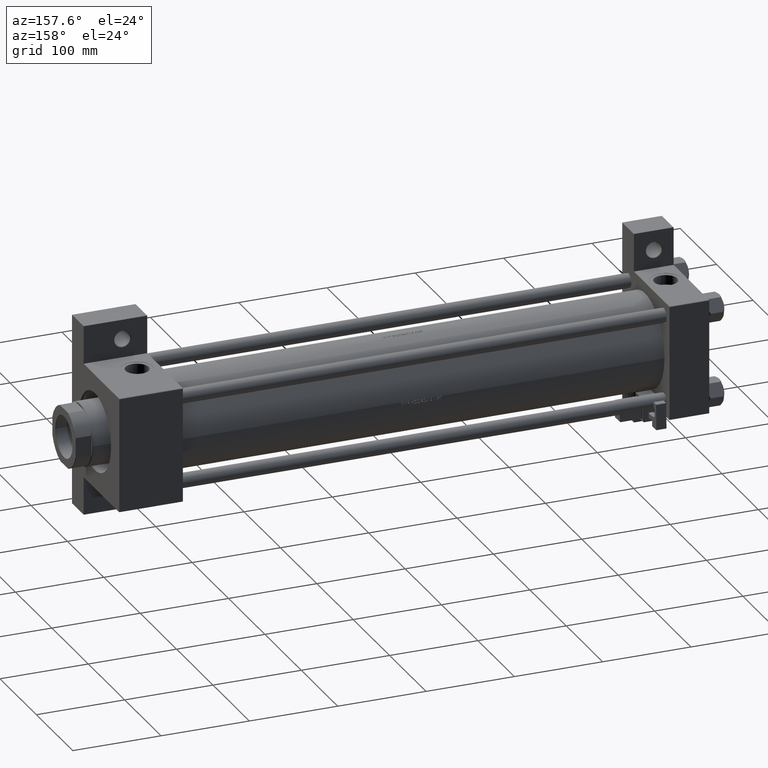
[diagram: clean part render]
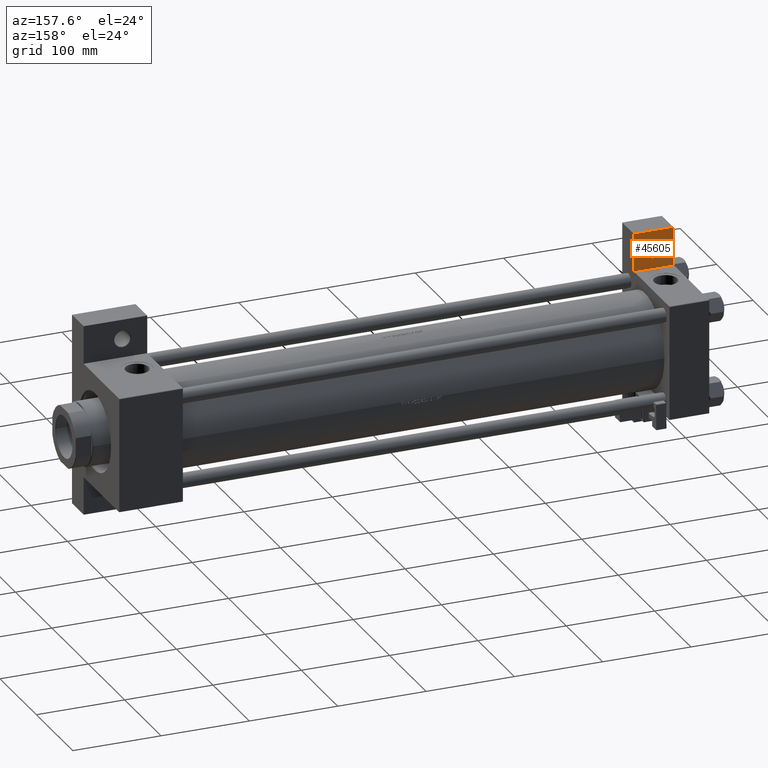
[diagram: same view with one face highlighted and labeled with its STEP entity id]
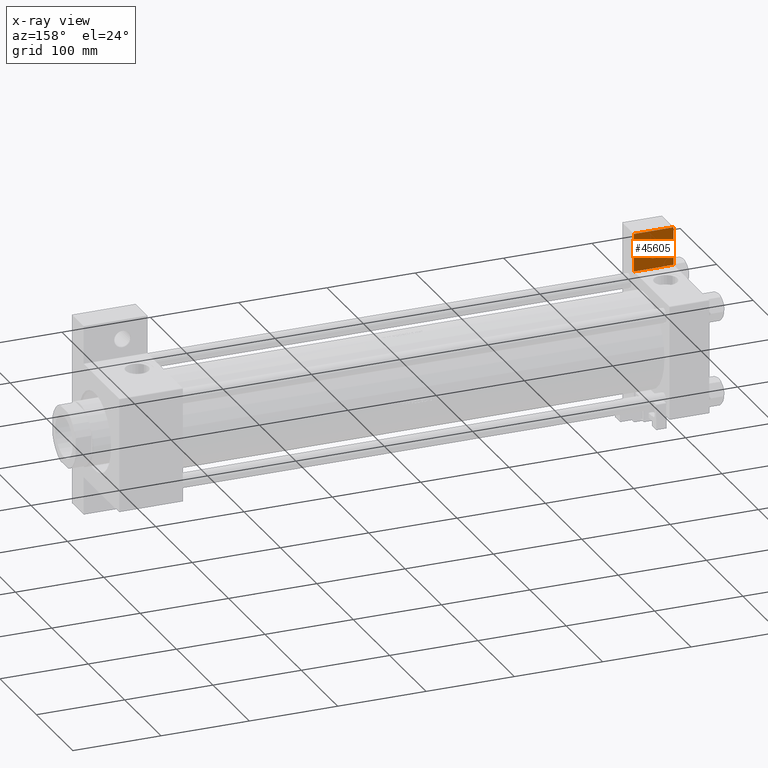
[diagram: x-ray of the same camera — body ghosted, the highlighted face saturated]
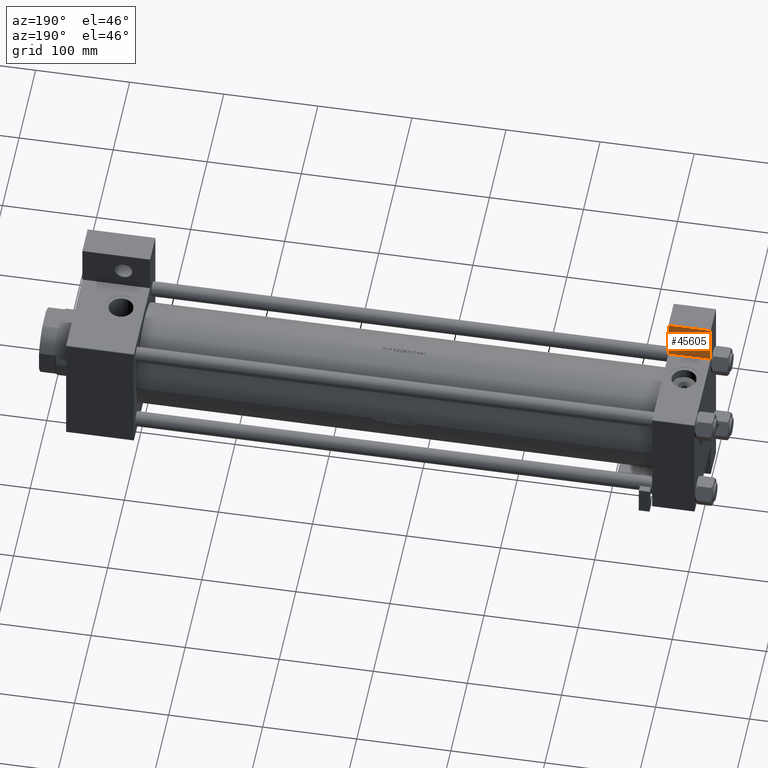
[diagram: same view with one face highlighted and labeled with its STEP entity id]
A machine part, auxiliary view. The second image highlights one B-rep face of the part: STEP entity #45605.
The next image is the same camera in x-ray: the body ghosted, the highlighted face saturated — about 0% of this face is hidden behind the body in this view.
A second angle (auxiliary view) of the same face is appended — the face is thin or edge-on in the first view.
In plain terms, the highlighted planar face has unit normal (0, -1, 0).
Its self-contained STEP definition (entity closure, byte-faithful):
#290 = DIRECTION ( 'NONE',  ( -1.000000000000000000, 0.000000000000000000, 0.000000000000000000 ) ) ;
#434 = LINE ( 'NONE', #24741, #41705 ) ;
#874 = CARTESIAN_POINT ( 'NONE',  ( 31.49949999999999406, -86.00000000000004263, -33.00000000000000000 ) ) ;
#2332 = VECTOR ( 'NONE', #10179, 1000.000000000000000 ) ;
#3481 = CARTESIAN_POINT ( 'NONE',  ( 22.00000000000000000, -86.00000000000004263, -33.00000000000000000 ) ) ;
#3577 = FACE_OUTER_BOUND ( 'NONE', #35748, .T. ) ;
#3712 = EDGE_CURVE ( 'NONE', #41828, #46774, #434, .T. ) ;
#5263 = LINE ( 'NONE', #49181, #44895 ) ;
#5445 = EDGE_CURVE ( 'NONE', #41512, #8492, #48333, .T. ) ;
#5585 = CARTESIAN_POINT ( 'NONE',  ( 45.00000000000000000, -108.0000000000000000, -33.00000000000000000 ) ) ;
#6552 = FACE_BOUND ( 'NONE', #20998, .T. ) ;
#7501 = DIRECTION ( 'NONE',  ( 0.000000000000000000, 0.000000000000000000, -1.000000000000000000 ) ) ;
#8142 = AXIS2_PLACEMENT_3D ( 'NONE', #15704, #7501, #51190 ) ;
#8145 = AXIS2_PLACEMENT_3D ( 'NONE', #3481, #40721, #290 ) ;
#8492 = VERTEX_POINT ( 'NONE', #33521 ) ;
#9638 = EDGE_CURVE ( 'NONE', #28936, #49533, #30968, .T. ) ;
#9798 = AXIS2_PLACEMENT_3D ( 'NONE', #18717, #15460, #15979 ) ;
#10179 = DIRECTION ( 'NONE',  ( 1.000000000000000000, 0.000000000000000000, 0.000000000000000000 ) ) ;
#11275 = EDGE_CURVE ( 'NONE', #8492, #41828, #42988, .T. ) ;
#12079 = CARTESIAN_POINT ( 'NONE',  ( -4.696407624884284320E-16, -107.9999999999999858, -33.00000000000000000 ) ) ;
#12407 = EDGE_CURVE ( 'NONE', #49533, #28936, #34352, .T. ) ;
#12918 = ORIENTED_EDGE ( 'NONE', *, *, #9638, .T. ) ;
#13923 = VECTOR ( 'NONE', #37183, 1000.000000000000000 ) ;
#15460 = DIRECTION ( 'NONE',  ( 0.000000000000000000, 0.000000000000000000, -1.000000000000000000 ) ) ;
#15678 = CARTESIAN_POINT ( 'NONE',  ( 1.020153353658907479E-15, -65.00000000000000000, -33.00000000000000000 ) ) ;
#15704 = CARTESIAN_POINT ( 'NONE',  ( 22.00000000000000000, -86.00000000000004263, -33.00000000000000000 ) ) ;
#15850 = ORIENTED_EDGE ( 'NONE', *, *, #5445, .T. ) ;
#15979 = DIRECTION ( 'NONE',  ( -1.000000000000000000, 0.000000000000000000, -0.000000000000000000 ) ) ;
#17115 = ORIENTED_EDGE ( 'NONE', *, *, #12407, .T. ) ;
#18717 = CARTESIAN_POINT ( 'NONE',  ( 0.000000000000000000, 0.000000000000000000, -33.00000000000000000 ) ) ;
#20998 = EDGE_LOOP ( 'NONE', ( #17115, #12918 ) ) ;
#21050 = CARTESIAN_POINT ( 'NONE',  ( 12.50050000000000416, -86.00000000000004263, -33.00000000000000000 ) ) ;
#24741 = CARTESIAN_POINT ( 'NONE',  ( 45.00000000000000000, -107.9999999999999858, -33.00000000000000000 ) ) ;
#25096 = DIRECTION ( 'NONE',  ( -1.000000000000000000, 0.000000000000000000, 0.000000000000000000 ) ) ;
#28936 = VERTEX_POINT ( 'NONE', #21050 ) ;
#29045 = ORIENTED_EDGE ( 'NONE', *, *, #29417, .T. ) ;
#29417 = EDGE_CURVE ( 'NONE', #46774, #41512, #5263, .T. ) ;
#29544 = ORIENTED_EDGE ( 'NONE', *, *, #3712, .T. ) ;
#30679 = ORIENTED_EDGE ( 'NONE', *, *, #11275, .T. ) ;
#30968 = CIRCLE ( 'NONE', #8145, 9.499499999999994060 ) ;
#33521 = CARTESIAN_POINT ( 'NONE',  ( -4.696407624884288264E-16, -108.0000000000000000, -33.00000000000000000 ) ) ;
#34352 = CIRCLE ( 'NONE', #8142, 9.499499999999994060 ) ;
#35748 = EDGE_LOOP ( 'NONE', ( #29544, #29045, #15850, #30679 ) ) ;
#37183 = DIRECTION ( 'NONE',  ( -3.464637479412410313E-17, -1.000000000000000000, 0.000000000000000000 ) ) ;
#40721 = DIRECTION ( 'NONE',  ( 0.000000000000000000, 0.000000000000000000, -1.000000000000000000 ) ) ;
#41512 = VERTEX_POINT ( 'NONE', #15678 ) ;
#41705 = VECTOR ( 'NONE', #51779, 1000.000000000000000 ) ;
#41828 = VERTEX_POINT ( 'NONE', #5585 ) ;
#42988 = LINE ( 'NONE', #47226, #2332 ) ;
#44895 = VECTOR ( 'NONE', #25096, 1000.000000000000000 ) ;
#45605 = ADVANCED_FACE ( 'NONE', ( #6552, #3577 ), #52244, .F. ) ;
#46174 = CARTESIAN_POINT ( 'NONE',  ( 45.00000000000000000, -65.00000000000000000, -33.00000000000000000 ) ) ;
#46774 = VERTEX_POINT ( 'NONE', #46174 ) ;
#47226 = CARTESIAN_POINT ( 'NONE',  ( -4.696407624884288264E-16, -108.0000000000000000, -33.00000000000000000 ) ) ;
#48333 = LINE ( 'NONE', #12079, #13923 ) ;
#49181 = CARTESIAN_POINT ( 'NONE',  ( 1.020153353658907084E-15, -65.00000000000001421, -33.00000000000000000 ) ) ;
#49533 = VERTEX_POINT ( 'NONE', #874 ) ;
#51190 = DIRECTION ( 'NONE',  ( -1.000000000000000000, 0.000000000000000000, 0.000000000000000000 ) ) ;
#51779 = DIRECTION ( 'NONE',  ( 0.000000000000000000, 1.000000000000000000, 0.000000000000000000 ) ) ;
#52244 = PLANE ( 'NONE',  #9798 ) ;